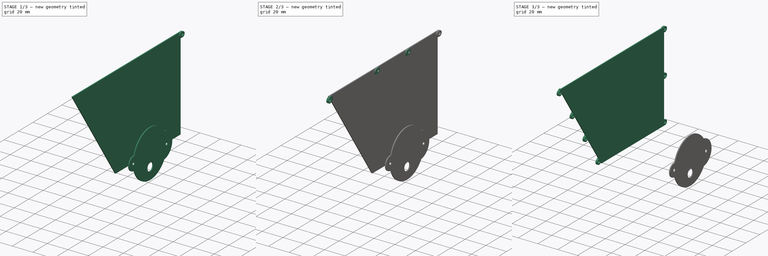
[diagram: build sequence overview — one tinted view per stage of 3, left to right]
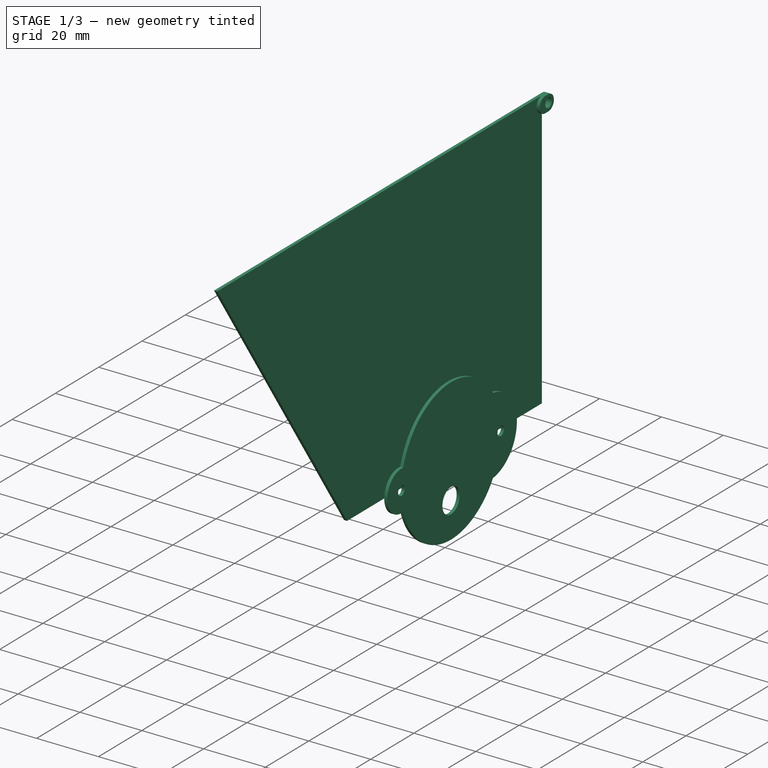
[diagram: stage 1 of 3 — iso view after this stage's code; geometry added in this stage tinted green]
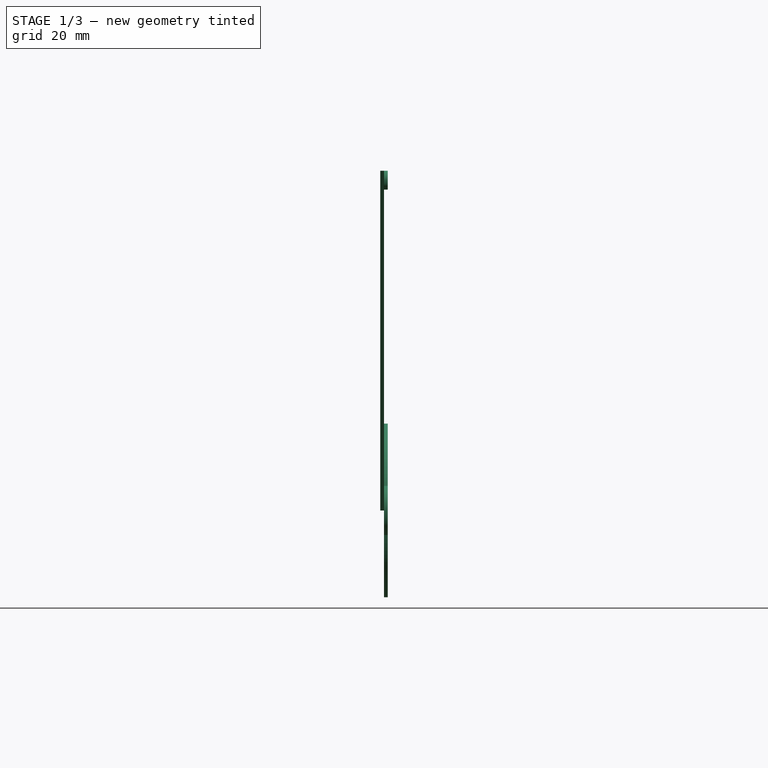
[diagram: stage 1 of 3 — front view after this stage's code; geometry added in this stage tinted green]
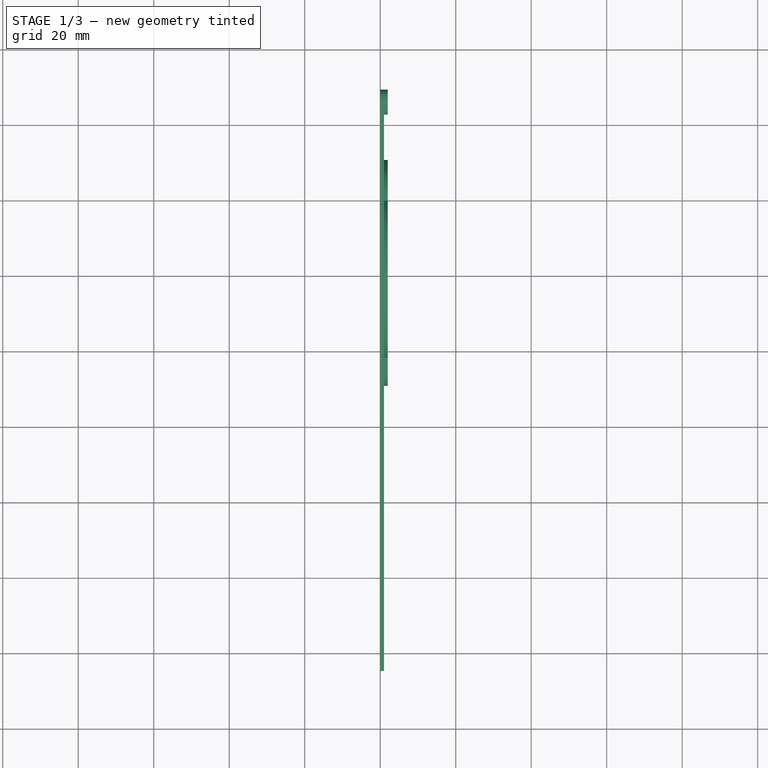
[diagram: stage 1 of 3 — top view after this stage's code; geometry added in this stage tinted green]
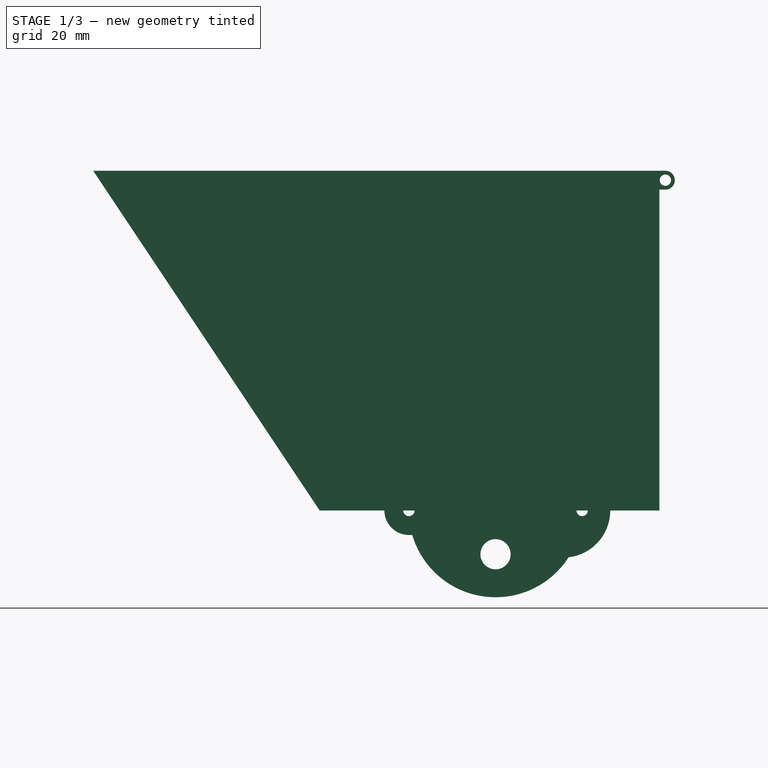
[diagram: stage 1 of 3 — right view after this stage's code; geometry added in this stage tinted green]
FCSTD DOCUMENT  (FreeCAD 0.18.4R)
Label: bunker4
License: All rights reserved
LicenseURL: http://en.wikipedia.org/wiki/All_rights_reserved
objects: Sketcher::SketchObject×9, PartDesign::Pad×6, PartDesign::Body×5, PartDesign::LinearPattern×2, Spreadsheet::Sheet×1, PartDesign::FeatureBase×1, Part::Mirroring×1, App::Part×1
note: 30 computed .brp shape members not serialized (recipe doc carries the construction recipe); baked Part::Feature solids carry a one-line shape summary decoded from their .brp

FEATURE [Spreadsheet::Sheet] Spreadsheet
  cells = A1=width; B1(width)=110; E1=orifice length; F1(orifice_length)=90; A2=height; B2(height)=90; A3=thickness; B3(thickness)=1; A4=fixture hole front diameter; B4(fixture_hole_front_diameter)=3; C4=fixture hole end diameter; D4(fixture_hole_end_diameter)=2; A5=fixture outside diameter; B5(fixture_outside_diameter)==fixture_hole_front_diameter + 2; A6=fixturehole center offset; B6(fixture_hole_center_offset)==fixture_hole_front_diameter / 2 + 0.1; A7=length; B7(length)=150
FEATURE [PartDesign::Pad] Pad  label="Unnamed"
  Length = 100
  Length2 = 100
  Type = 0
FEATURE [Sketcher::SketchObject] Sketch  label="Sketch001"
  MapMode = 5
  Placement = pos=(1,-4e-16,3e-16) rot=(0.57735,0.57735,0.57735;2.0944rad)
  Support = -> [Pad]
  expr: Constraints[10] = Spreadsheet.length
  expr: Constraints[9] = Spreadsheet.orifice_length
  expr: Constraints[8] = Spreadsheet.height
  sketch-geometry (4):
    g0: LineSegment StartX=-46.5977 StartY=0 StartZ=0 EndX=-106.598 EndY=90 EndZ=0
    g1: LineSegment StartX=43.4023 StartY=90 StartZ=0 EndX=43.4023 EndY=0 EndZ=0
    g2: Circle CenterX=45.0023 CenterY=87.5 CenterZ=0 NormalX=0 NormalY=0 NormalZ=1 AngleXU=0 Radius=2.5
    g3: LineSegment StartX=43.4023 StartY=85 StartZ=0 EndX=45.0023 EndY=85 EndZ=0
  constraints (11):
    c: PointOnObject(g0,g-1)
    c: PointOnObject(g0,g-1)
    c: Coincident(g0,g1)
    c: Coincident(g1,g2)
    c: Horizontal(g2)
    c: Coincident(g2,g3)
    c: Coincident(g3,g0)
    c: Vertical(g3)
    c: Distance(g3) = 90
    c: Distance(g0) = 90
    c: Distance(g2) = 150
FEATURE [Sketcher::SketchObject] Sketch001  label="Unnamed"
FEATURE [PartDesign::Pad] Pad001
  BaseFeature = -> Pad
  Length = 1
  Length2 = 1
  Placement = pos=(0,0,0) rot=(0.57735,0.57735,0.57735;2.0944rad)
  Profile = -> Sketch001
  Type = 4
FEATURE [Sketcher::SketchObject] Sketch003
  MapMode = 5
  Placement = pos=(1,-4e-16,3e-16) rot=(0.57735,0.57735,0.57735;2.0944rad)
  Support = -> [Pad]
  constraints (31):
    c: Diameter(g0) = 41
    c: Coincident(g2,g1)
    c: Coincident(g3,g1)
    c: Parallel(g2,g3)
    c: Tangent(g2,g1)
    c: Tangent(g3,g1)
    c: Diameter(g1) = 8
    c: Coincident(g4,g1)
    c: Coincident(g6,g5)
    c: Diameter(g6) = 18
    c: Diameter(g5) = 19
    c: Coincident(g8,g7)
    c: Distance(g8) = 22.95
    c: Coincident(g10,g9)
    c: Coincident(g10,g8)
    c: Distance(g10) = 11.6
    c: Coincident(g11,g8)
    c: Coincident(g11,g1)
    c: Equal(g8,g11)
    c: Perpendicular(g8,g10)
    c: Parallel(g8,g11)
    c: Coincident(g8,g0)
    c: PointOnObject(g5,g8)
    c: PointOnObject(g3,g0)
    c: PointOnObject(g2,g0)
    c: Parallel(g3,g11)
    c: PointOnObject(g5,g0)
    c: PointOnObject(g5,g0)
    c: PointOnObject(g12,g6)
    c: PointOnObject(g12,g8)
    c: Distance(g7,g12) = 3.95
FEATURE [PartDesign::Body] Body
  Group = -> [Sketch,Pad,Sketch001,Pad001,Sketch002,Pad002,LinearPattern,LinearPattern001,Sketch003]
  Origin = -> Origin
  Placement = pos=(55,0,0) rot=(0,0,1;0rad)
  Tip = -> LinearPattern001
FEATURE [Sketcher::SketchObject] Sketch004  label="Sketch005"
  MapMode = 5
  Placement = pos=(1,-2e-16,2e-16) rot=(0.57735,0.57735,0.57735;2.0944rad)
  expr: Constraints[8] = Spreadsheet.height
  expr: Constraints[9] = Spreadsheet.orifice_length
  expr: Constraints[10] = Spreadsheet.length
  sketch-geometry (4):
    g0: LineSegment StartX=-46.5977 StartY=0 StartZ=0 EndX=-106.598 EndY=90 EndZ=0
    g1: LineSegment StartX=43.4023 StartY=90 StartZ=0 EndX=43.4023 EndY=0 EndZ=0
    g2: ArcOfCircle CenterX=-22.95 CenterY=0 CenterZ=0 NormalX=0 NormalY=0 NormalZ=1 AngleXU=0 Radius=6.5 StartAngle=1.57079 EndAngle=4.71239
    g3: LineSegment StartX=-22.95 StartY=-6.5 StartZ=0 EndX=-22.0624 EndY=-6.5 EndZ=0
  constraints (11):
    c: PointOnObject(g0,g-1)
    c: PointOnObject(g0,g-1)
    c: Coincident(g0,g1)
    c: Coincident(g1,g2)
    c: Horizontal(g2)
    c: Coincident(g2,g3)
    c: Coincident(g3,g0)
    c: Vertical(g3)
    c: Distance(g3) = 90
    c: Distance(g0) = 90
    c: Distance(g2) = 150
FEATURE [Sketcher::SketchObject] Sketch005  label="Unnamed"
FEATURE [PartDesign::Pad] Pad003
  Length = 1
  Length2 = 100
  Placement = pos=(1,-2e-16,2e-16) rot=(0.57735,0.57735,0.57735;2.0944rad)
  Profile = -> Sketch005
  Type = 0
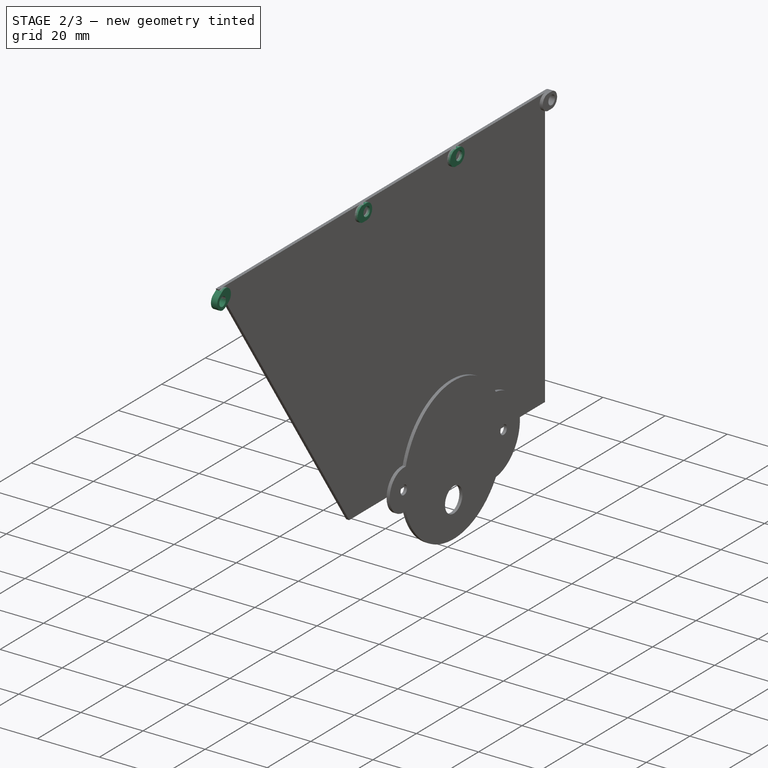
[diagram: stage 2 of 3 — iso view after this stage's code; geometry added in this stage tinted green]
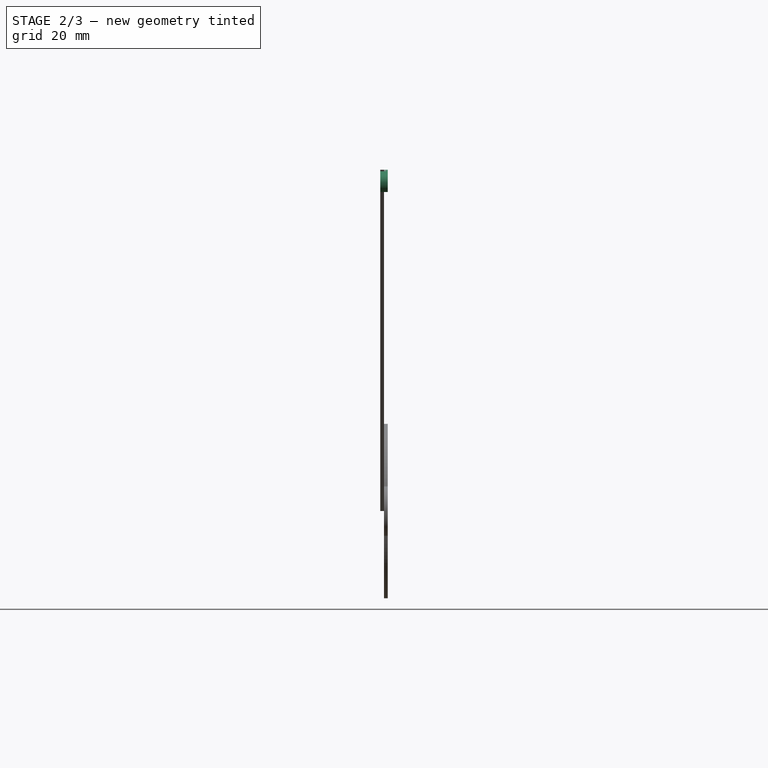
[diagram: stage 2 of 3 — front view after this stage's code; geometry added in this stage tinted green]
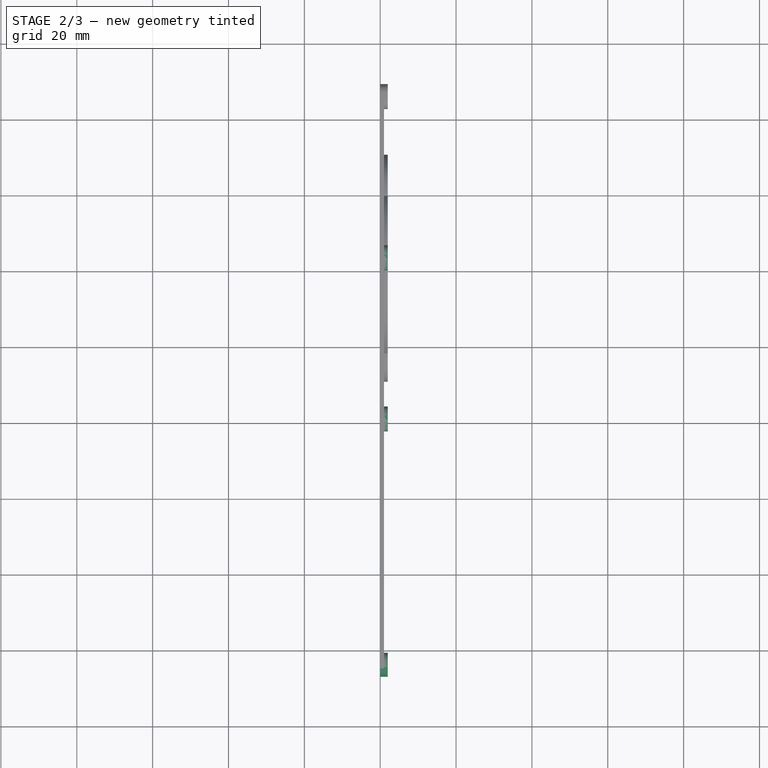
[diagram: stage 2 of 3 — top view after this stage's code; geometry added in this stage tinted green]
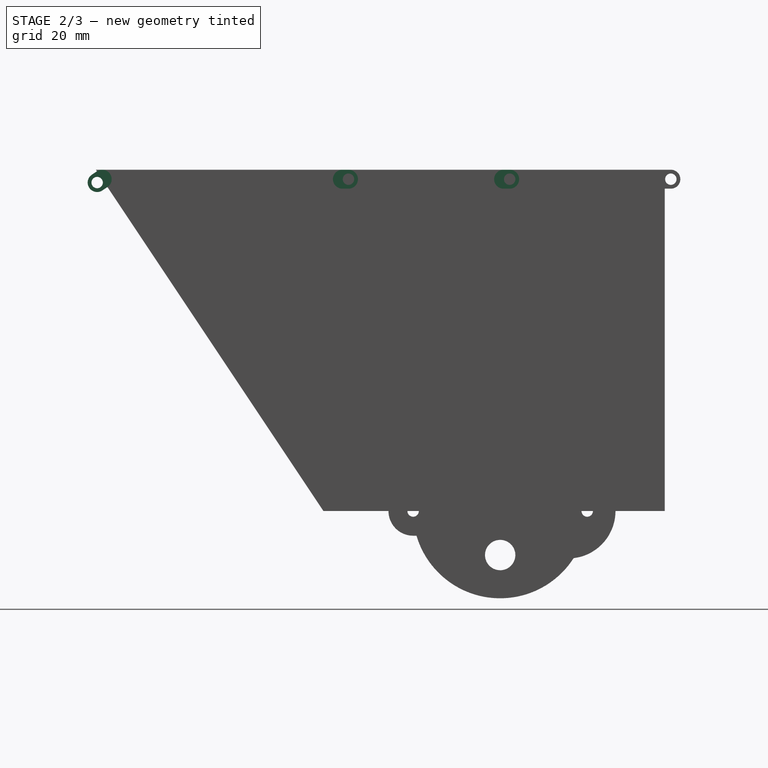
[diagram: stage 2 of 3 — right view after this stage's code; geometry added in this stage tinted green]
FEATURE [Sketcher::SketchObject] Sketch002
  MapMode = 5
  Placement = pos=(1,-4e-16,3e-16) rot=(0.57735,0.57735,0.57735;2.0944rad)
  Support = -> [Pad]
FEATURE [PartDesign::Pad] Pad002
  BaseFeature = -> Pad001
  Length = 1
  Length2 = 1
  Placement = pos=(0,0,0) rot=(0.57735,0.57735,0.57735;2.0944rad)
  Profile = -> Sketch002
  Type = 4
FEATURE [PartDesign::LinearPattern] LinearPattern
  BaseFeature = -> Pad002
  Direction = -> Sketch001 [V_Axis]
  Length = 85
  Occurrences = 3
  Originals = -> [Pad001]
  Placement = pos=(0,0,0) rot=(0.57735,0.57735,0.57735;2.0944rad)
  Reversed = true
  expr: Length = Spreadsheet.height - Spreadsheet.fixture_outside_diameter
FEATURE [PartDesign::LinearPattern] LinearPattern001
  BaseFeature = -> LinearPattern
  Direction = -> LinearPattern [Edge13]
  Length = 101
  Occurrences = 4
  Originals = -> [Pad002]
  Placement = pos=(0,0,0) rot=(0.57735,0.57735,0.57735;2.0944rad)
  Reversed = true
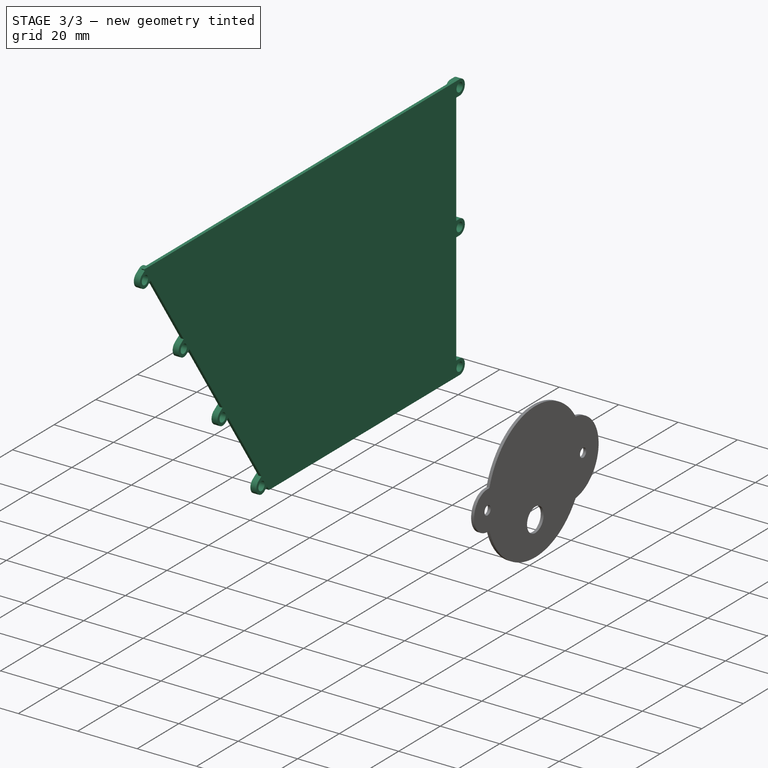
[diagram: stage 3 of 3 — iso view after this stage's code; geometry added in this stage tinted green]
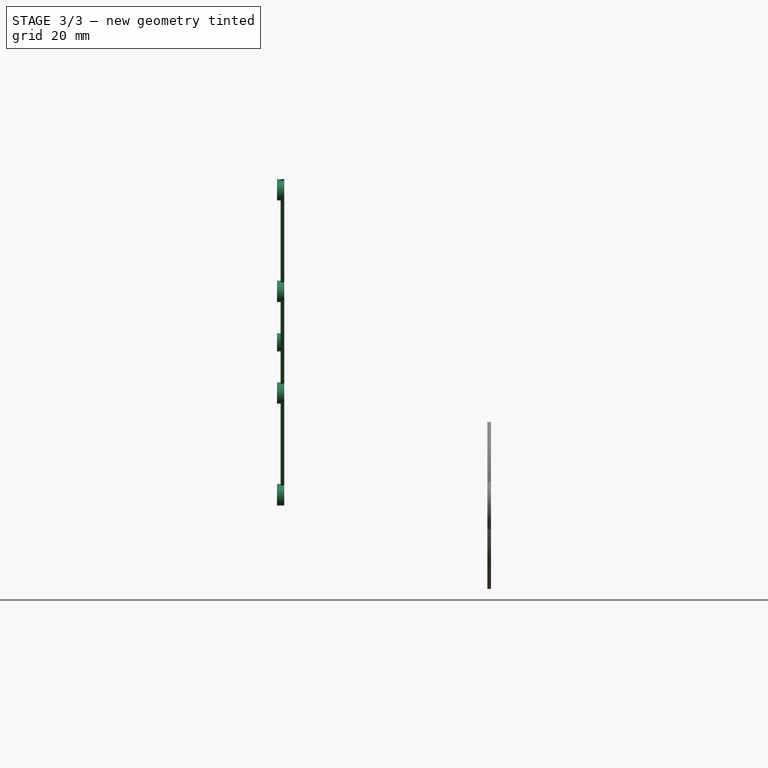
[diagram: stage 3 of 3 — front view after this stage's code; geometry added in this stage tinted green]
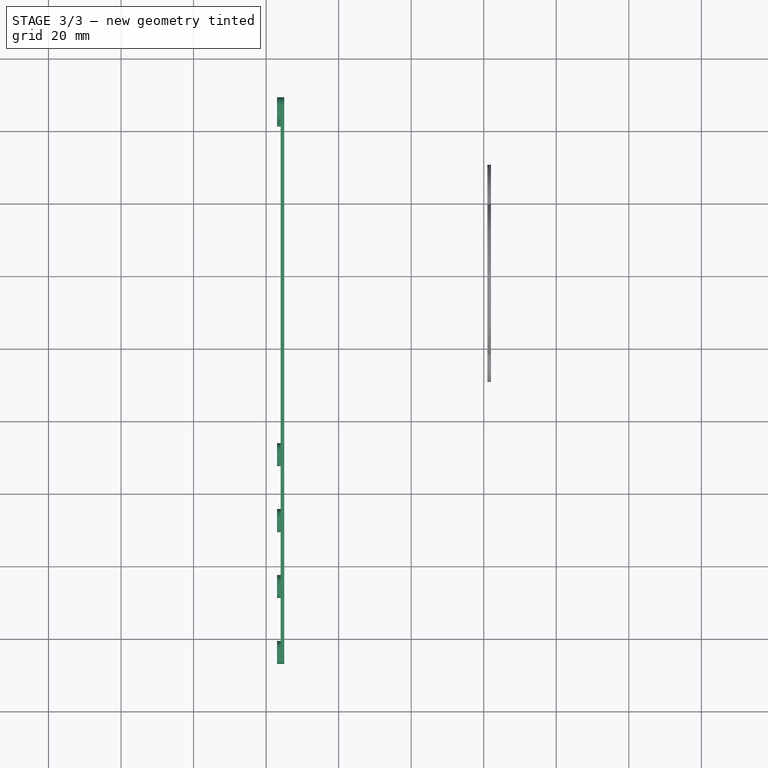
[diagram: stage 3 of 3 — top view after this stage's code; geometry added in this stage tinted green]
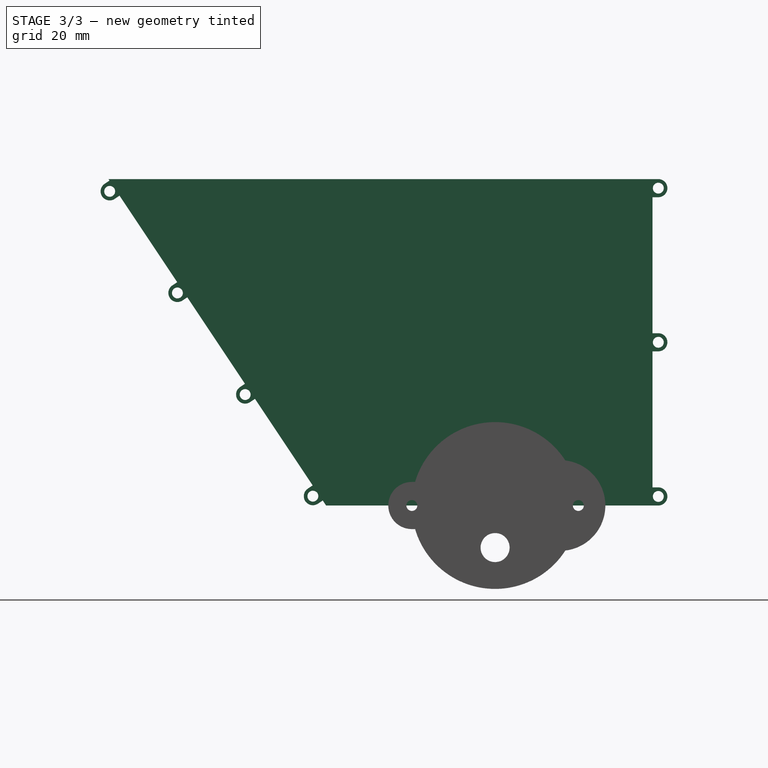
[diagram: stage 3 of 3 — right view after this stage's code; geometry added in this stage tinted green]
FEATURE [PartDesign::Body] Body002
  Origin = -> Origin002
FEATURE [PartDesign::Body] Body003
  Origin = -> Origin004
FEATURE [PartDesign::FeatureBase] Clone
  BaseFeature = -> Body
FEATURE [Part::Mirroring] Part__Mirroring  label="Clone (Mirror #1)"
  Base = (0,0,0)
  Normal = (1,0,0)
  Placement = pos=(-55,0,0) rot=(0,0,1;0rad)
  Source = -> Clone
FEATURE [PartDesign::Pad] Pad004  label="Unnamed"
  Length = 100
  Length2 = 100
  Type = 0
FEATURE [Sketcher::SketchObject] Sketch006  label="Sketch007"
  MapMode = 5
  Placement = pos=(-55,0,0) rot=(0.707107,0,-0.707107;3.14159rad)
  Support = -> [Pad004]
  expr: Constraints[13] = Spreadsheet.height
  expr: Constraints[12] = Spreadsheet.width
  constraints (14):
    c: Coincident(g0,g1)
    c: Coincident(g2,g0)
    c: Horizontal(g0)
    c: Vertical(g1)
    c: Vertical(g2)
    c: PointOnObject(g1,g-1)
    c: Coincident(g3,g1)
    c: Coincident(g3,g-1)
    c: Coincident(g4,g3)
    c: Coincident(g4,g2)
    c: Horizontal(g4)
    c: Equal(g4,g3)
    c: Distance(g0) = 110
    c: Distance(g2) = 90
FEATURE [Sketcher::SketchObject] Sketch007  label="Unnamed"
FEATURE [PartDesign::Body] Body004
  Group = -> [Sketch006,Pad004,Sketch007]
  Origin = -> Origin005
  Tip = -> Pad004
FEATURE [Sketcher::SketchObject] Sketch008  label="Unnamed"
  ExternalGeometry = -> [Pad003]
  constraints (44):
    c: Coincident(g0,g-1)
    c: Coincident(g1,g0)
    c: Coincident(g2,g-4)
    c: Coincident(g2,g0)
    c: Coincident(g2,g1)
    c: Coincident(g3,g-6)
    c: Coincident(g4,g3)
    c: Coincident(g4,g0)
    c: Coincident(g5,g3)
    c: Coincident(g5,g1)
    c: Coincident(g6,g3)
    c: Coincident(g6,g-8)
    c: Coincident(g6,g-7)
    c: Coincident(g7,g0)
    c: Coincident(g7,g-8)
    c: Coincident(g7,g-4)
    c: Coincident(g8,g0)
    c: Coincident(g8,g-7)
    c: Coincident(g8,g-5)
    c: Coincident(g9,g2)
    c: Coincident(g9,g8)
    c: Coincident(g9,g7)
    c: Horizontal(g5)
    c: Horizontal(g4)
    c: PointOnObject(g10,g3)
    c: PointOnObject(g10,g6)
    c: PointOnObject(g11,g0)
    c: PointOnObject(g11,g7)
    c: PointOnObject(g12,g2)
    c: PointOnObject(g12,g9)
    c: Perpendicular(g2,g12)
    c: Perpendicular(g0,g11)
    c: Perpendicular(g3,g10)
    c: Equal(g10,g11)
    c: Equal(g11,g12)
    c: Distance(g12) = 2
    c: Equal(g1,g0)
    c: Coincident(g13,g6)
    c: Coincident(g13,g7)
    c: Coincident(g14,g6)
    c: Coincident(g14,g8)
    c: Diameter(g3) = 9
    c: Diameter(g2) = 21
    c: Diameter(g1) = 42
FEATURE [PartDesign::Pad] Pad005  label="Unnamed"
  Length = 100
  Length2 = 100
  Type = 0
FEATURE [PartDesign::Body] Body001
  Group = -> [Sketch005,Pad003,Sketch008,Pad005]
  Origin = -> Origin001
  Tip = -> Pad005
FEATURE [App::Part] Part
  Group = -> [Body,Body001,Body002,Spreadsheet,Body003,Body004,Clone,Part__Mirroring]
  Origin = -> Origin003
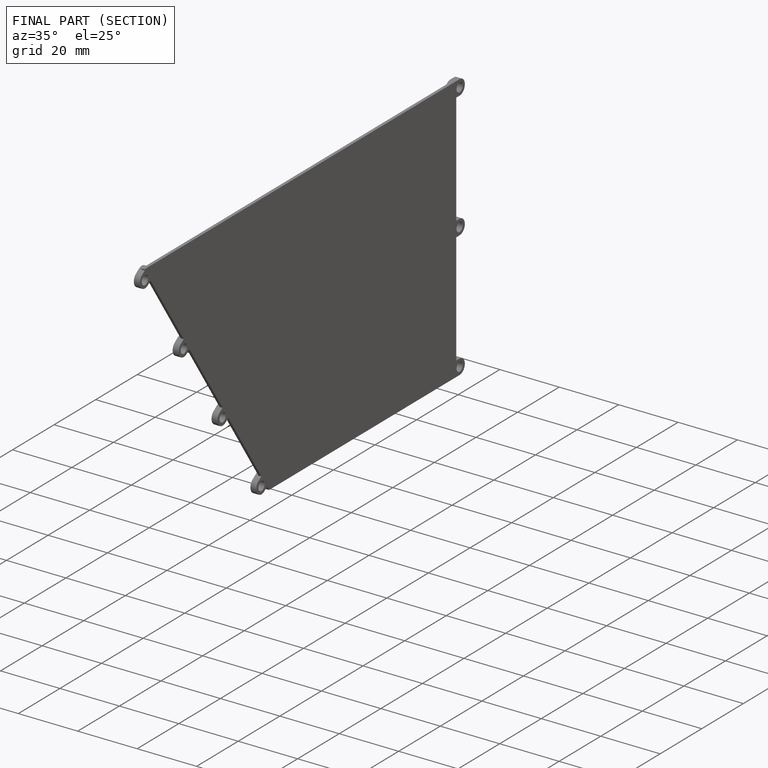
[diagram: finished part — half-section view (interior)]
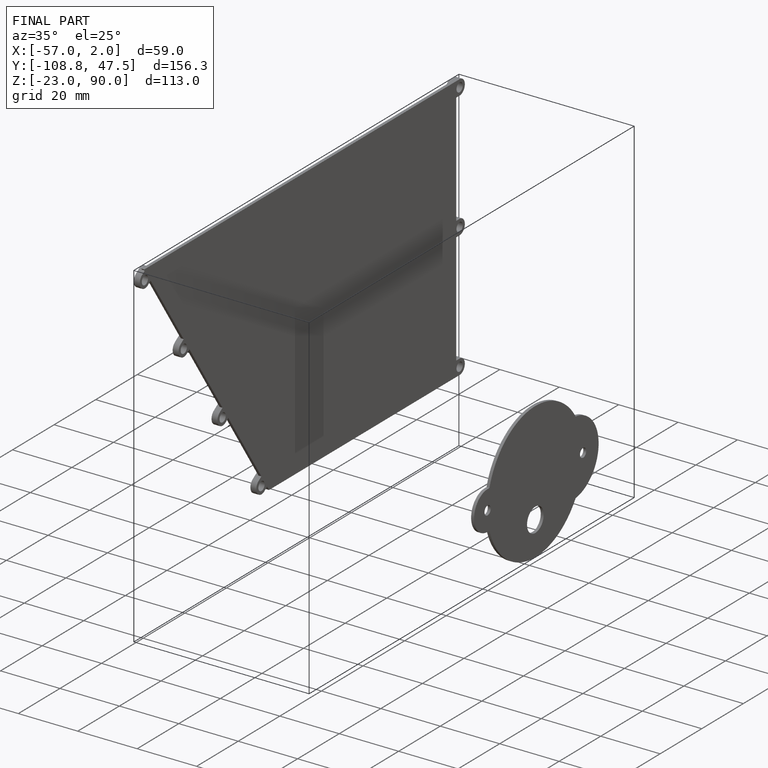
[diagram: finished part — iso view with bounding-box wireframe]
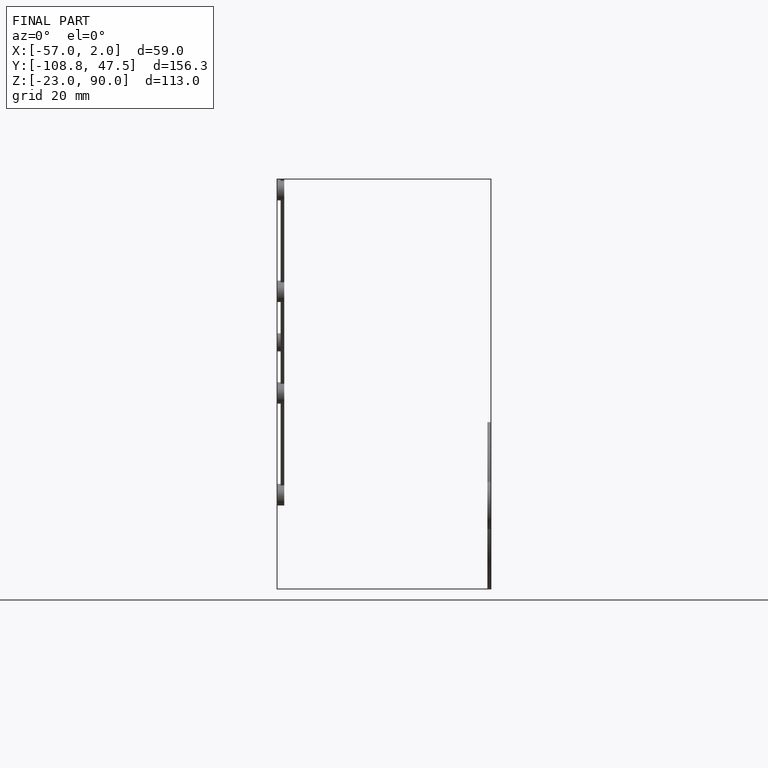
[diagram: finished part — front view with bounding-box wireframe]
